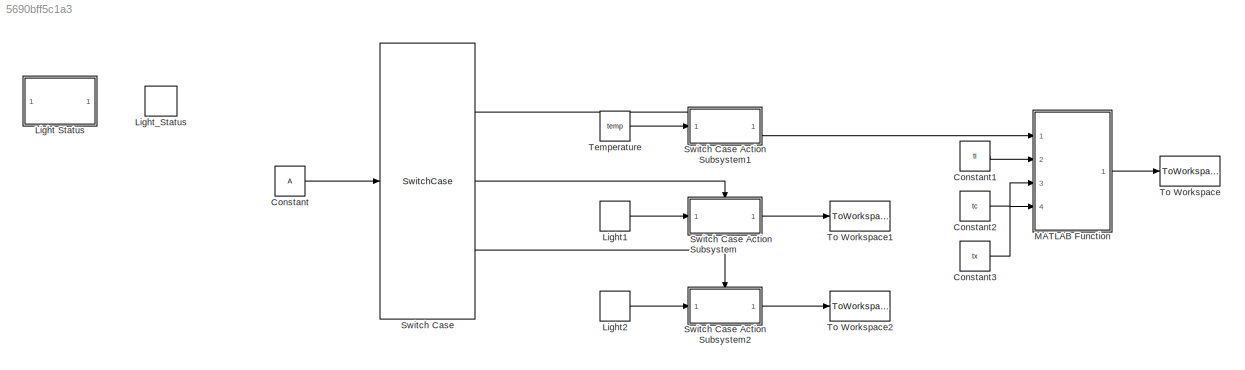
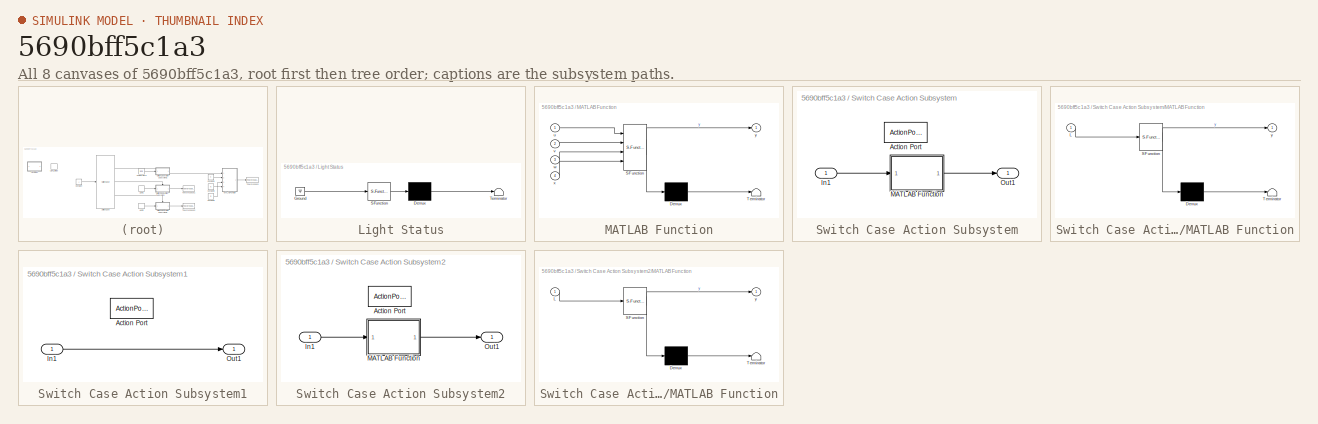
[diagram: thumbnail index - all 8 canvases of the model, root first then tree order]
MODEL slx_5690bff5c1a3
KIND model
CONFIG AbsTol = auto
CONFIG FixedStep = auto
CONFIG MaxStep = auto
CONFIG MinStep = auto
CONFIG RelTol = 1e-3
CONFIG SampleTimeConstraint = Unconstrained
CONFIG Solver = VariableStepAuto
CONFIG SolverMode = Auto
CONFIG SolverName = VariableStepAuto
CONFIG StartTime = 0.0
CONFIG StopTime = inf
BLOCK [Constant] Constant
  Value = A
BLOCK [Constant] Constant1
  Value = tl
BLOCK [Constant] Constant2
  Value = tc
BLOCK [Constant] Constant3
  Value = tx
BLOCK [SubSystem] Light Status
  ErrorFcn = Stateflow.Translate.translate
  PermitHierarchicalResolution = ExplicitOnly
  Ports = []
  RequestExecContextInheritance = off
  SFBlockType = MATLAB Function
  TreatAsAtomicUnit = on
BLOCK [Demux] Light Status/ Demux 
  Outputs = 1
  Ports = [1, 1]
BLOCK [Ground] Light Status/ Ground 
BLOCK [S-Function] Light Status/ SFunction 
  EnableBusSupport = on
  FunctionName = sf_sfun
  PortCounts = [1 1]
  Ports = [1, 1]
  Tag = Stateflow S-Function models 3
BLOCK [Terminator] Light Status/ Terminator 
BLOCK [DataStoreRead] Light1
  DataStoreName = L
  Ports = [0, 1]
BLOCK [DataStoreRead] Light2
  DataStoreName = L
  Ports = [0, 1]
BLOCK [DataStoreMemory] Light_Status
  DataStoreName = L
  OutDataTypeStr = double
  RTWStateStorageClass = ExportedGlobal
  ReadBeforeWriteMsg = warning
  SignalType = real
  WriteAfterReadMsg = warning
  WriteAfterWriteMsg = warning
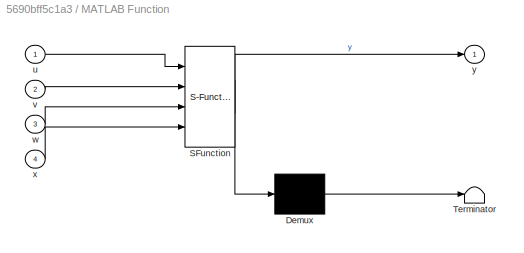
BLOCK [SubSystem] MATLAB Function
  ErrorFcn = Stateflow.Translate.translate
  PermitHierarchicalResolution = ExplicitOnly
  Ports = [4, 1]
  RequestExecContextInheritance = off
  SFBlockType = MATLAB Function
  TreatAsAtomicUnit = on
BLOCK [Demux] MATLAB Function/ Demux 
  Outputs = 1
  Ports = [1, 1]
BLOCK [S-Function] MATLAB Function/ SFunction 
  EnableBusSupport = on
  FunctionName = sf_sfun
  PortCounts = [4 2]
  Ports = [4, 2]
  Tag = Stateflow S-Function models 2
BLOCK [Terminator] MATLAB Function/ Terminator 
BLOCK [Inport] MATLAB Function/u
  IconDisplay = Port number
BLOCK [Inport] MATLAB Function/v
  IconDisplay = Port number
  Port = 2
BLOCK [Inport] MATLAB Function/w
  IconDisplay = Port number
  Port = 3
BLOCK [Inport] MATLAB Function/x
  IconDisplay = Port number
  Port = 4
BLOCK [Outport] MATLAB Function/y
  IconDisplay = Port number
BLOCK [SwitchCase] Switch Case
  CaseConditions = {1,2,3}
  Ports = [1, 3]
  ShowDefaultCase = off
BLOCK [SubSystem] Switch Case Action Subsystem
  Ports = [1, 1, 0, 0, 0, 0, 0, 1]
  RequestExecContextInheritance = off
  TreatAsAtomicUnit = on
BLOCK [ActionPort] Switch Case Action Subsystem/Action Port
  ActionType = case
BLOCK [Inport] Switch Case Action Subsystem/In1
  IconDisplay = Port number
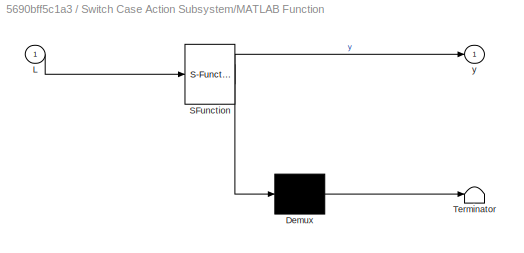
BLOCK [SubSystem] Switch Case Action Subsystem/MATLAB Function
  ErrorFcn = Stateflow.Translate.translate
  PermitHierarchicalResolution = ExplicitOnly
  Ports = [1, 1]
  RequestExecContextInheritance = off
  SFBlockType = MATLAB Function
  TreatAsAtomicUnit = on
BLOCK [Demux] Switch Case Action Subsystem/MATLAB Function/ Demux 
  Outputs = 1
  Ports = [1, 1]
BLOCK [S-Function] Switch Case Action Subsystem/MATLAB Function/ SFunction 
  EnableBusSupport = on
  FunctionName = sf_sfun
  PortCounts = [1 2]
  Ports = [1, 2]
  Tag = Stateflow S-Function models 4
BLOCK [Terminator] Switch Case Action Subsystem/MATLAB Function/ Terminator 
BLOCK [Inport] Switch Case Action Subsystem/MATLAB Function/L
  IconDisplay = Port number
BLOCK [Outport] Switch Case Action Subsystem/MATLAB Function/y
  IconDisplay = Port number
BLOCK [Outport] Switch Case Action Subsystem/Out1
  IconDisplay = Port number
BLOCK [SubSystem] Switch Case Action Subsystem1
  Ports = [1, 1, 0, 0, 0, 0, 0, 1]
  RequestExecContextInheritance = off
  TreatAsAtomicUnit = on
BLOCK [ActionPort] Switch Case Action Subsystem1/Action Port
  ActionType = case
BLOCK [Inport] Switch Case Action Subsystem1/In1
  IconDisplay = Port number
BLOCK [Outport] Switch Case Action Subsystem1/Out1
  IconDisplay = Port number
BLOCK [SubSystem] Switch Case Action Subsystem2
  Ports = [1, 1, 0, 0, 0, 0, 0, 1]
  RequestExecContextInheritance = off
  TreatAsAtomicUnit = on
BLOCK [ActionPort] Switch Case Action Subsystem2/Action Port
  ActionType = case
BLOCK [Inport] Switch Case Action Subsystem2/In1
  IconDisplay = Port number
BLOCK [SubSystem] Switch Case Action Subsystem2/MATLAB Function
  ErrorFcn = Stateflow.Translate.translate
  PermitHierarchicalResolution = ExplicitOnly
  Ports = [1, 1]
  RequestExecContextInheritance = off
  SFBlockType = MATLAB Function
  TreatAsAtomicUnit = on
BLOCK [Demux] Switch Case Action Subsystem2/MATLAB Function/ Demux 
  Outputs = 1
  Ports = [1, 1]
BLOCK [S-Function] Switch Case Action Subsystem2/MATLAB Function/ SFunction 
  EnableBusSupport = on
  FunctionName = sf_sfun
  PortCounts = [1 2]
  Ports = [1, 2]
  Tag = Stateflow S-Function models 5
BLOCK [Terminator] Switch Case Action Subsystem2/MATLAB Function/ Terminator 
BLOCK [Inport] Switch Case Action Subsystem2/MATLAB Function/L
  IconDisplay = Port number
BLOCK [Outport] Switch Case Action Subsystem2/MATLAB Function/y
  IconDisplay = Port number
BLOCK [Outport] Switch Case Action Subsystem2/Out1
  IconDisplay = Port number
BLOCK [Constant] Temperature
  Value = temp
BLOCK [ToWorkspace] To Workspace
  FixptAsFi = on
  MaxDataPoints = inf
  Ports = [1]
  SampleTime = -1
  Save2DSignal = 3-D array (concatenate along third dimension)
  SaveFormat = Timeseries
  VariableName = B
BLOCK [ToWorkspace] To Workspace1
  FixptAsFi = on
  MaxDataPoints = inf
  Ports = [1]
  SampleTime = -1
  Save2DSignal = 3-D array (concatenate along third dimension)
  SaveFormat = Timeseries
  VariableName = C
BLOCK [ToWorkspace] To Workspace2
  FixptAsFi = on
  MaxDataPoints = inf
  Ports = [1]
  SampleTime = -1
  Save2DSignal = 3-D array (concatenate along third dimension)
  SaveFormat = Timeseries
  VariableName = D
LINE Constant1:1 -> MATLAB Function:2
LINE Constant2:1 -> MATLAB Function:3
LINE Constant3:1 -> MATLAB Function:4
LINE Constant:1 -> Switch Case:1
LINE Light1:1 -> Switch Case Action Subsystem:1
LINE Light2:1 -> Switch Case Action Subsystem2:1
LINE MATLAB Function:1 -> To Workspace:1
LINE Switch Case Action Subsystem/In1:1 -> Switch Case Action Subsystem/MATLAB Function:1
LINE Switch Case Action Subsystem/MATLAB Function:1 -> Switch Case Action Subsystem/Out1:1
LINE Switch Case Action Subsystem1/In1:1 -> Switch Case Action Subsystem1/Out1:1
LINE Switch Case Action Subsystem1:1 -> MATLAB Function:1
LINE Switch Case Action Subsystem2/In1:1 -> Switch Case Action Subsystem2/MATLAB Function:1
LINE Switch Case Action Subsystem2/MATLAB Function:1 -> Switch Case Action Subsystem2/Out1:1
LINE Switch Case Action Subsystem2:1 -> To Workspace2:1
LINE Switch Case Action Subsystem:1 -> To Workspace1:1
LINE Switch Case:1 -> Switch Case Action Subsystem1:ifaction
LINE Switch Case:2 -> Switch Case Action Subsystem:ifaction
LINE Switch Case:3 -> Switch Case Action Subsystem2:ifaction
LINE Temperature:1 -> Switch Case Action Subsystem1:1
CHART MATLAB Function states=1 transitions=1
  STATE_LABEL 'eML_blk_kernel()'
  STATE_LABEL 'SCRIPT:\nfunction y = fcn(u, v, w, x)\n%#codegen\nif (v == 0 && x == 0)\n    y = u;\nelseif (x == 0 && v ~= 0)\n    y = u + (w - v)*10000;\nelse\n    y = u - (w - x)*10000;\nend'
CHART Light Status states=1 transitions=1
  STATE_LABEL 'eML_blk_kernel()'
  STATE_LABEL 'SCRIPT:\nfunction fcn\n%#codegen\nglobal L;\nL = 3;'
CHART Switch Case Action
Subsystem/MATLAB Function states=1 transitions=1
  STATE_LABEL 'eML_blk_kernel()'
  STATE_LABEL 'SCRIPT:\nfunction y = fcn(L)\n%#codegen\nif L == 3\n    L = 2;\nend\ny = L;'
CHART Switch Case Action
Subsystem2/MATLAB Function states=1 transitions=1
  STATE_LABEL 'eML_blk_kernel()'
  STATE_LABEL 'SCRIPT:\nfunction y = fcn(L)\n%#codegen\nif L == 2\n    L = 3;\nend\ny = L;'
